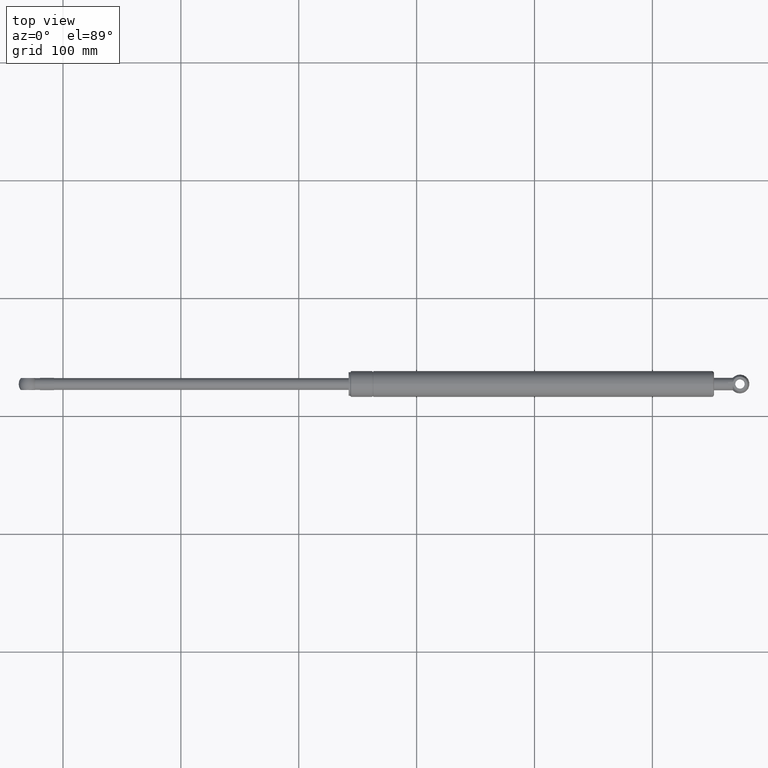
[diagram: clean part render]
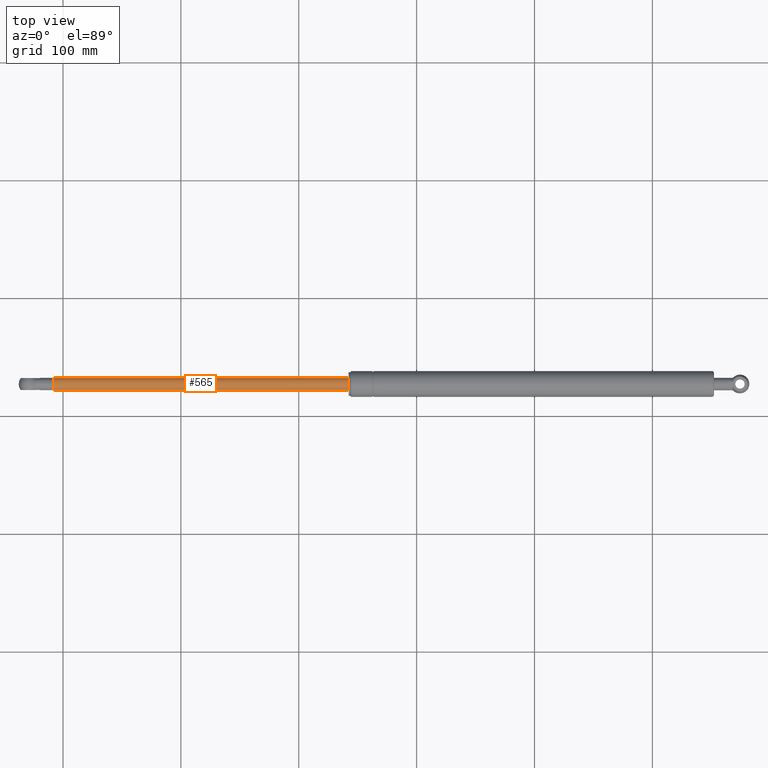
[diagram: same view with one face highlighted and labeled with its STEP entity id]
A machine part, top view. The second image highlights one B-rep face of the part: STEP entity #565.
In plain terms, the highlighted cylindrical surface (bore or boss wall) has radius 5 mm, axis along (-1, -0, -0).
Its self-contained STEP definition (entity closure, byte-faithful):
#70=CYLINDRICAL_SURFACE('',#641,5.00000000000002);
#104=FACE_BOUND('',#212,.T.);
#144=FACE_OUTER_BOUND('',#211,.T.);
#211=EDGE_LOOP('',(#428));
#212=EDGE_LOOP('',(#429));
#265=CIRCLE('',#637,5.);
#267=CIRCLE('',#642,5.00000000000003);
#308=VERTEX_POINT('',#958);
#310=VERTEX_POINT('',#965);
#353=EDGE_CURVE('',#308,#308,#265,.T.);
#355=EDGE_CURVE('',#310,#310,#267,.T.);
#428=ORIENTED_EDGE('',*,*,#355,.F.);
#429=ORIENTED_EDGE('',*,*,#353,.T.);
#565=ADVANCED_FACE('',(#144,#104),#70,.T.);
#637=AXIS2_PLACEMENT_3D('',#959,#785,#786);
#641=AXIS2_PLACEMENT_3D('',#964,#793,#794);
#642=AXIS2_PLACEMENT_3D('',#966,#795,#796);
#785=DIRECTION('center_axis',(-1.,0.,0.));
#786=DIRECTION('ref_axis',(0.,0.,1.));
#793=DIRECTION('center_axis',(-1.,0.,0.));
#794=DIRECTION('ref_axis',(0.,0.,1.));
#795=DIRECTION('center_axis',(-1.,0.,0.));
#796=DIRECTION('ref_axis',(0.,0.,1.));
#958=CARTESIAN_POINT('',(260.,0.,5.));
#959=CARTESIAN_POINT('Origin',(260.,0.,0.));
#964=CARTESIAN_POINT('Origin',(130.,0.,0.));
#965=CARTESIAN_POINT('',(7.1959436245814E-32,0.,5.00000000000003));
#966=CARTESIAN_POINT('Origin',(0.,0.,0.));